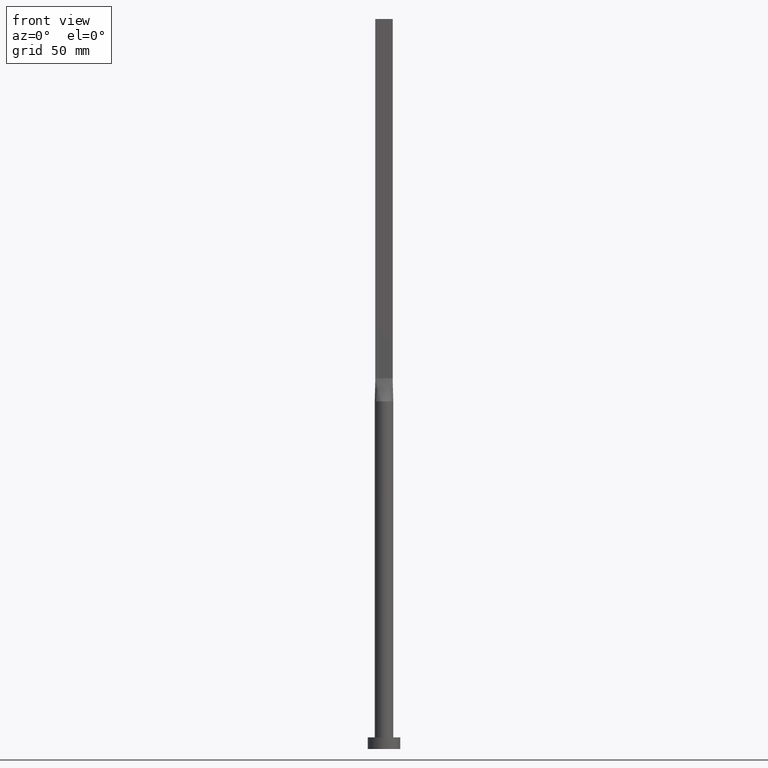
[diagram: clean part render]
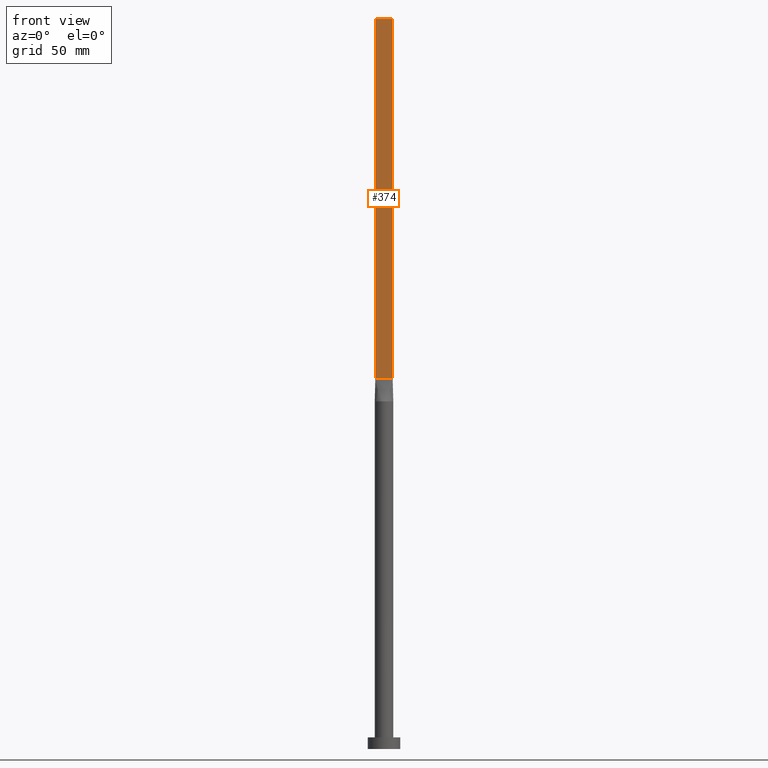
[diagram: same view with one face highlighted and labeled with its STEP entity id]
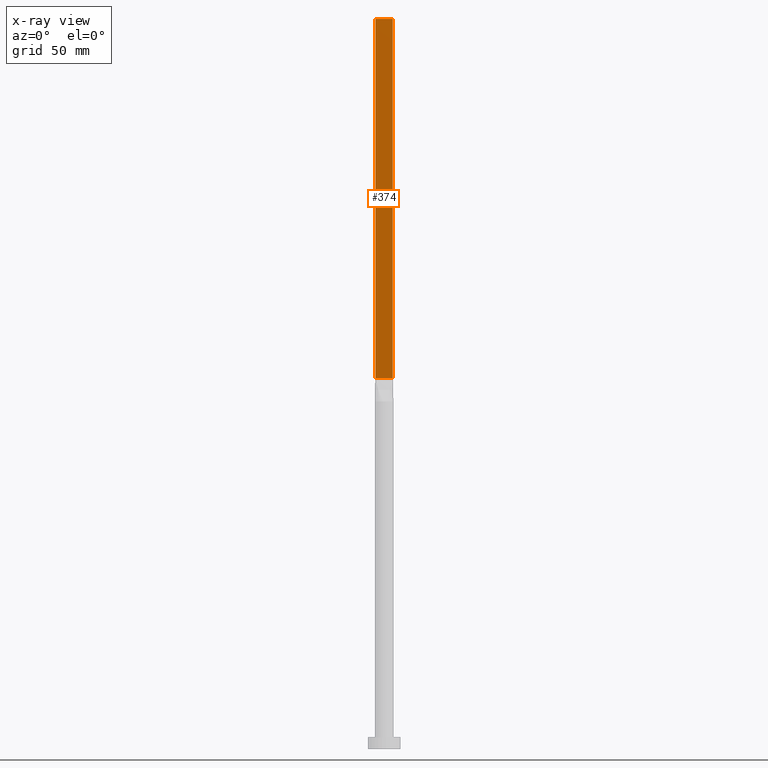
[diagram: x-ray of the same camera — body ghosted, the highlighted face saturated]
A machine part, front view. The second image highlights one B-rep face of the part: STEP entity #374.
The next image is the same camera in x-ray: the body ghosted, the highlighted face saturated — about 0% of this face is hidden behind the body in this view.
In plain terms, the highlighted planar face has unit normal (0, 1, -0).
Its self-contained STEP definition (entity closure, byte-faithful):
#10 = AXIS2_PLACEMENT_3D ( 'NONE', #572, #318, #88 ) ;
#23 = CARTESIAN_POINT ( 'NONE',  ( -3.750000000000000000, -0.7499999999999993339, 315.0000000000000000 ) ) ;
#32 = VECTOR ( 'NONE', #280, 1000.000000000000000 ) ;
#42 = VECTOR ( 'NONE', #424, 1000.000000000000000 ) ;
#60 = CARTESIAN_POINT ( 'NONE',  ( -3.750000000000000000, -0.7499999999999993339, 315.0000000000000000 ) ) ;
#75 = VERTEX_POINT ( 'NONE', #376 ) ;
#88 = DIRECTION ( 'NONE',  ( -1.000000000000000000, 5.782411586589357392E-17, 0.000000000000000000 ) ) ;
#98 = VERTEX_POINT ( 'NONE', #416 ) ;
#107 = ORIENTED_EDGE ( 'NONE', *, *, #496, .F. ) ;
#114 = VERTEX_POINT ( 'NONE', #60 ) ;
#115 = CARTESIAN_POINT ( 'NONE',  ( -3.750000000000000000, -0.7499999999999993339, 160.0000000000000000 ) ) ;
#124 = VECTOR ( 'NONE', #301, 1000.000000000000000 ) ;
#193 = CARTESIAN_POINT ( 'NONE',  ( -3.750000000000000000, -0.7499999999999993339, 160.0000000000000000 ) ) ;
#197 = DIRECTION ( 'NONE',  ( -0.000000000000000000, -0.000000000000000000, -1.000000000000000000 ) ) ;
#218 = LINE ( 'NONE', #23, #42 ) ;
#241 = LINE ( 'NONE', #246, #257 ) ;
#246 = CARTESIAN_POINT ( 'NONE',  ( 3.750000000000000000, -0.7499999999999997780, 315.0000000000000000 ) ) ;
#252 = LINE ( 'NONE', #115, #124 ) ;
#257 = VECTOR ( 'NONE', #197, 1000.000000000000000 ) ;
#266 = PLANE ( 'NONE',  #10 ) ;
#275 = EDGE_CURVE ( 'NONE', #114, #398, #218, .T. ) ;
#280 = DIRECTION ( 'NONE',  ( 1.000000000000000000, -5.782411586589357392E-17, 0.000000000000000000 ) ) ;
#301 = DIRECTION ( 'NONE',  ( 1.000000000000000000, -5.782411586589357392E-17, 0.000000000000000000 ) ) ;
#318 = DIRECTION ( 'NONE',  ( 5.782411586589357392E-17, 1.000000000000000000, -0.000000000000000000 ) ) ;
#374 = ADVANCED_FACE ( 'NONE', ( #533 ), #266, .F. ) ;
#376 = CARTESIAN_POINT ( 'NONE',  ( 3.750000000000000000, -0.7499999999999997780, 315.0000000000000000 ) ) ;
#387 = ORIENTED_EDGE ( 'NONE', *, *, #413, .F. ) ;
#398 = VERTEX_POINT ( 'NONE', #193 ) ;
#410 = ORIENTED_EDGE ( 'NONE', *, *, #555, .T. ) ;
#413 = EDGE_CURVE ( 'NONE', #114, #75, #544, .T. ) ;
#415 = CARTESIAN_POINT ( 'NONE',  ( -3.750000000000000000, -0.7499999999999993339, 315.0000000000000000 ) ) ;
#416 = CARTESIAN_POINT ( 'NONE',  ( 3.750000000000000000, -0.7499999999999997780, 160.0000000000000000 ) ) ;
#424 = DIRECTION ( 'NONE',  ( -0.000000000000000000, -0.000000000000000000, -1.000000000000000000 ) ) ;
#456 = EDGE_LOOP ( 'NONE', ( #410, #107, #387, #464 ) ) ;
#464 = ORIENTED_EDGE ( 'NONE', *, *, #275, .T. ) ;
#496 = EDGE_CURVE ( 'NONE', #75, #98, #241, .T. ) ;
#533 = FACE_OUTER_BOUND ( 'NONE', #456, .T. ) ;
#544 = LINE ( 'NONE', #415, #32 ) ;
#555 = EDGE_CURVE ( 'NONE', #398, #98, #252, .T. ) ;
#572 = CARTESIAN_POINT ( 'NONE',  ( -3.750000000000000000, -0.7499999999999993339, 315.0000000000000000 ) ) ;